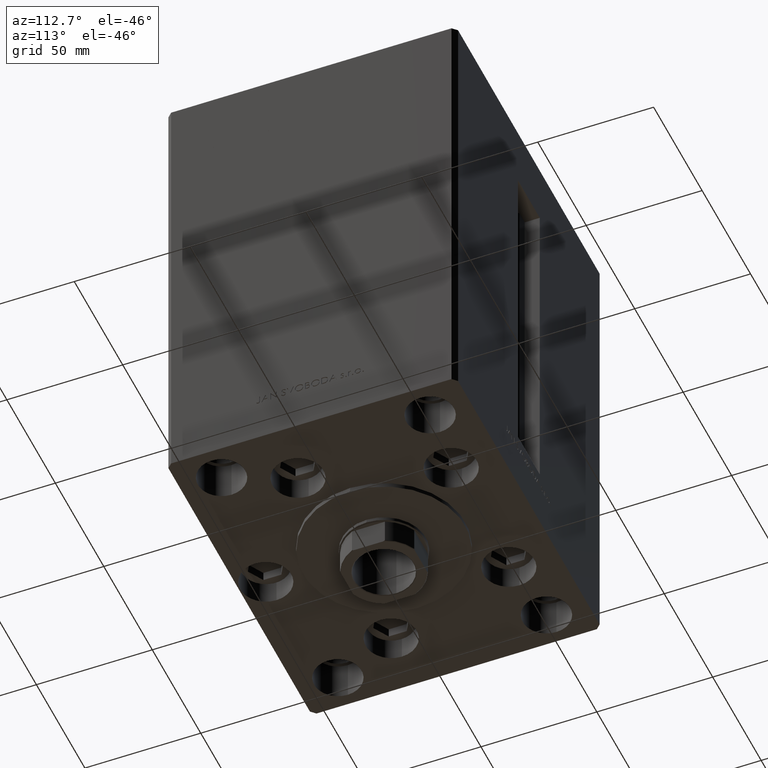
[diagram: clean part render]
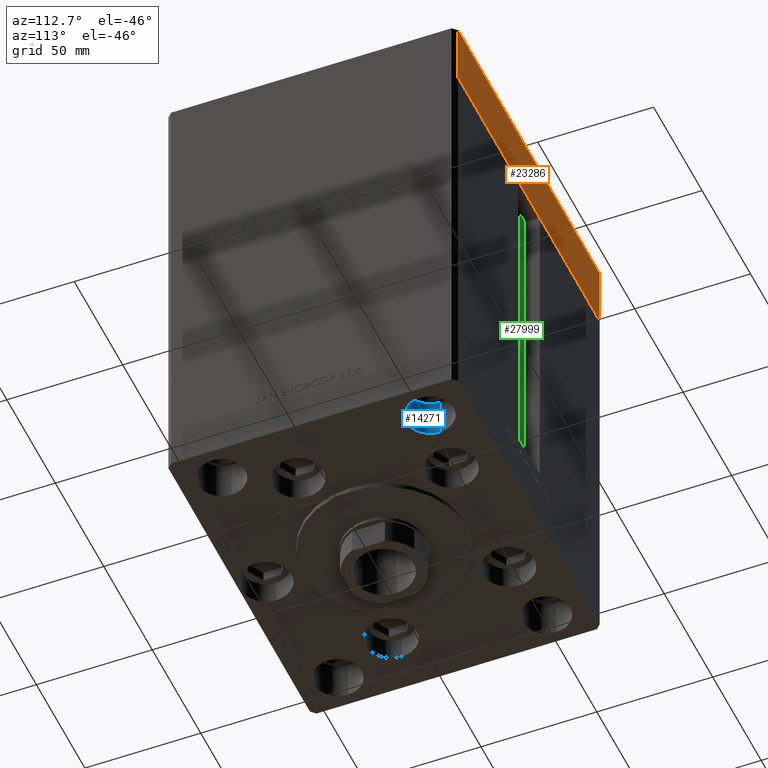
[diagram: same view with three faces highlighted in distinct colors, each labeled with its STEP entity id]
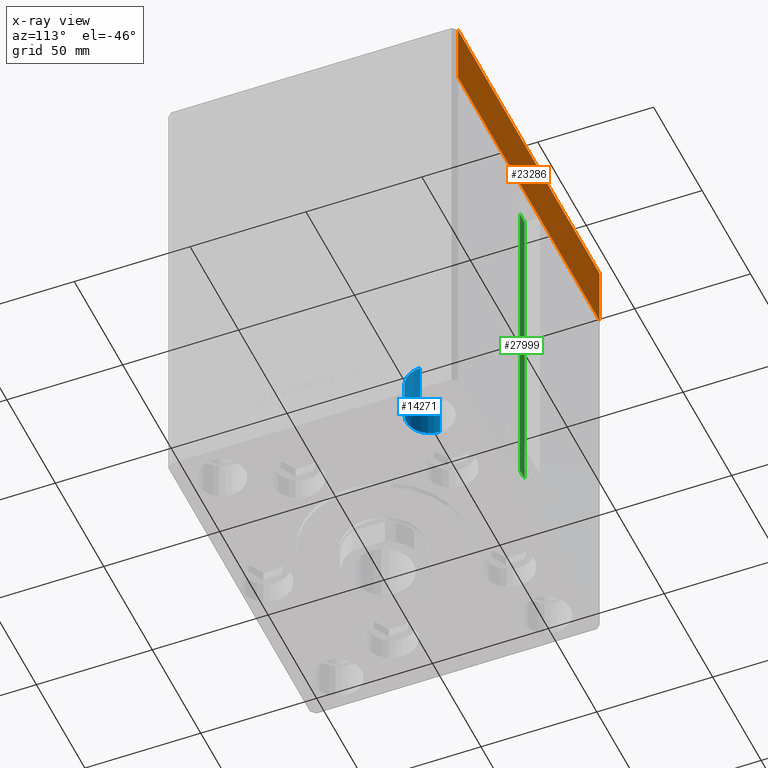
[diagram: x-ray of the same camera — body ghosted, the three highlighted faces saturated]
A machine part, auxiliary view with three faces highlighted in distinct colors.
The next image is the same camera in x-ray (body ghosted, the three faces saturated) — at least one of them is partly hidden behind the body in this view.
Their STEP definitions:

[orange] entity #23286 — the highlighted planar face has unit normal (-0, 1, 0).
#263 = DIRECTION ( 'NONE',  ( -1.000000000000000000, -1.901066822988282936E-16, 0.000000000000000000 ) ) ;
#1773 = VECTOR ( 'NONE', #21208, 1000.000000000000000 ) ;
#2021 = CARTESIAN_POINT ( 'NONE',  ( 72.99999999999992895, 62.50000000000001421, -27.00000000000000000 ) ) ;
#2050 = CARTESIAN_POINT ( 'NONE',  ( 72.99999999999992895, 62.50000000000001421, -27.00000000000000000 ) ) ;
#2683 = ORIENTED_EDGE ( 'NONE', *, *, #22191, .T. ) ;
#8813 = VECTOR ( 'NONE', #23526, 1000.000000000000000 ) ;
#8846 = AXIS2_PLACEMENT_3D ( 'NONE', #16347, #31454, #263 ) ;
#9917 = ORIENTED_EDGE ( 'NONE', *, *, #43497, .T. ) ;
#10445 = ORIENTED_EDGE ( 'NONE', *, *, #20473, .F. ) ;
#15859 = PLANE ( 'NONE',  #8846 ) ;
#16347 = CARTESIAN_POINT ( 'NONE',  ( 72.99999999999992895, 62.50000000000001421, -27.00000000000000000 ) ) ;
#16579 = LINE ( 'NONE', #43038, #8813 ) ;
#18905 = VERTEX_POINT ( 'NONE', #26313 ) ;
#20473 = EDGE_CURVE ( 'NONE', #29033, #18905, #28882, .T. ) ;
#20505 = DIRECTION ( 'NONE',  ( -1.000000000000000000, -1.901066822988282689E-16, 0.000000000000000000 ) ) ;
#21079 = EDGE_CURVE ( 'NONE', #27412, #29033, #35921, .T. ) ;
#21208 = DIRECTION ( 'NONE',  ( -1.000000000000000000, -1.901066822988282689E-16, 0.000000000000000000 ) ) ;
#21872 = VECTOR ( 'NONE', #20505, 1000.000000000000000 ) ;
#22031 = EDGE_LOOP ( 'NONE', ( #10445, #48441, #9917, #2683 ) ) ;
#22191 = EDGE_CURVE ( 'NONE', #34513, #18905, #16579, .T. ) ;
#23286 = ADVANCED_FACE ( 'NONE', ( #34185 ), #15859, .T. ) ;
#23523 = CARTESIAN_POINT ( 'NONE',  ( 72.99999999999992895, 62.50000000000001421, 0.000000000000000000 ) ) ;
#23526 = DIRECTION ( 'NONE',  ( 0.000000000000000000, 0.000000000000000000, 1.000000000000000000 ) ) ;
#26313 = CARTESIAN_POINT ( 'NONE',  ( -73.00000000000001421, 62.49999999999998579, 0.000000000000000000 ) ) ;
#27077 = VECTOR ( 'NONE', #47783, 1000.000000000000000 ) ;
#27238 = CARTESIAN_POINT ( 'NONE',  ( -73.00000000000001421, 62.49999999999998579, -27.00000000000000000 ) ) ;
#27412 = VERTEX_POINT ( 'NONE', #2050 ) ;
#28882 = LINE ( 'NONE', #29600, #1773 ) ;
#29033 = VERTEX_POINT ( 'NONE', #23523 ) ;
#29600 = CARTESIAN_POINT ( 'NONE',  ( 72.99999999999992895, 62.50000000000001421, 0.000000000000000000 ) ) ;
#31454 = DIRECTION ( 'NONE',  ( -1.901066822988282936E-16, 1.000000000000000000, 0.000000000000000000 ) ) ;
#34185 = FACE_OUTER_BOUND ( 'NONE', #22031, .T. ) ;
#34513 = VERTEX_POINT ( 'NONE', #27238 ) ;
#35106 = LINE ( 'NONE', #46938, #21872 ) ;
#35921 = LINE ( 'NONE', #2021, #27077 ) ;
#43038 = CARTESIAN_POINT ( 'NONE',  ( -73.00000000000001421, 62.49999999999998579, -27.00000000000000000 ) ) ;
#43497 = EDGE_CURVE ( 'NONE', #27412, #34513, #35106, .T. ) ;
#46938 = CARTESIAN_POINT ( 'NONE',  ( 72.99999999999992895, 62.50000000000001421, -27.00000000000000000 ) ) ;
#47783 = DIRECTION ( 'NONE',  ( 0.000000000000000000, 0.000000000000000000, 1.000000000000000000 ) ) ;
#48441 = ORIENTED_EDGE ( 'NONE', *, *, #21079, .F. ) ;

[blue] entity #14271 — the highlighted cylindrical surface (edge-blend (fillet) strip) has radius 10.25 mm, axis along (0, 0, -1).
#4037 = AXIS2_PLACEMENT_3D ( 'NONE', #12458, #4802, #38688 ) ;
#4310 = VECTOR ( 'NONE', #23770, 1000.000000000000000 ) ;
#4802 = DIRECTION ( 'NONE',  ( 0.000000000000000000, 0.000000000000000000, 1.000000000000000000 ) ) ;
#8073 = LINE ( 'NONE', #11535, #46346 ) ;
#8159 = FACE_OUTER_BOUND ( 'NONE', #13619, .T. ) ;
#9039 = CARTESIAN_POINT ( 'NONE',  ( -70.25000000000000000, 45.00000000000000711, 0.000000000000000000 ) ) ;
#9316 = CIRCLE ( 'NONE', #37737, 10.25000000000000178 ) ;
#11535 = CARTESIAN_POINT ( 'NONE',  ( -70.25000000000000000, 45.00000000000000711, -17.00000000000000000 ) ) ;
#11967 = CARTESIAN_POINT ( 'NONE',  ( -70.25000000000000000, 45.00000000000000711, -17.00000000000000000 ) ) ;
#12458 = CARTESIAN_POINT ( 'NONE',  ( -60.00000000000000000, 45.00000000000000711, -17.00000000000000000 ) ) ;
#13306 = CYLINDRICAL_SURFACE ( 'NONE', #15836, 10.25000000000000178 ) ;
#13619 = EDGE_LOOP ( 'NONE', ( #14968, #19728, #43486, #15361 ) ) ;
#13968 = CARTESIAN_POINT ( 'NONE',  ( -49.74999999999999289, 45.00000000000000711, -17.00000000000000000 ) ) ;
#14271 = ADVANCED_FACE ( 'NONE', ( #8159 ), #13306, .F. ) ;
#14968 = ORIENTED_EDGE ( 'NONE', *, *, #17165, .F. ) ;
#15305 = VERTEX_POINT ( 'NONE', #13968 ) ;
#15361 = ORIENTED_EDGE ( 'NONE', *, *, #29066, .F. ) ;
#15593 = LINE ( 'NONE', #16332, #4310 ) ;
#15836 = AXIS2_PLACEMENT_3D ( 'NONE', #30445, #45014, #45257 ) ;
#16332 = CARTESIAN_POINT ( 'NONE',  ( -49.74999999999999289, 45.00000000000000711, -17.00000000000000000 ) ) ;
#17165 = EDGE_CURVE ( 'NONE', #45179, #15305, #34068, .T. ) ;
#19728 = ORIENTED_EDGE ( 'NONE', *, *, #44712, .T. ) ;
#23053 = VERTEX_POINT ( 'NONE', #9039 ) ;
#23770 = DIRECTION ( 'NONE',  ( -0.000000000000000000, -0.000000000000000000, 1.000000000000000000 ) ) ;
#24830 = CARTESIAN_POINT ( 'NONE',  ( -60.00000000000000000, 45.00000000000000711, 0.000000000000000000 ) ) ;
#29066 = EDGE_CURVE ( 'NONE', #15305, #47462, #15593, .T. ) ;
#30445 = CARTESIAN_POINT ( 'NONE',  ( -60.00000000000000000, 45.00000000000000711, -17.00000000000000000 ) ) ;
#34068 = CIRCLE ( 'NONE', #4037, 10.25000000000000178 ) ;
#35015 = CARTESIAN_POINT ( 'NONE',  ( -49.74999999999999289, 45.00000000000000711, 0.000000000000000000 ) ) ;
#36215 = DIRECTION ( 'NONE',  ( 1.000000000000000000, 0.000000000000000000, 0.000000000000000000 ) ) ;
#37737 = AXIS2_PLACEMENT_3D ( 'NONE', #24830, #39917, #36215 ) ;
#38688 = DIRECTION ( 'NONE',  ( 1.000000000000000000, 0.000000000000000000, 0.000000000000000000 ) ) ;
#39917 = DIRECTION ( 'NONE',  ( 0.000000000000000000, 0.000000000000000000, 1.000000000000000000 ) ) ;
#41966 = DIRECTION ( 'NONE',  ( -0.000000000000000000, -0.000000000000000000, 1.000000000000000000 ) ) ;
#43486 = ORIENTED_EDGE ( 'NONE', *, *, #46724, .T. ) ;
#44712 = EDGE_CURVE ( 'NONE', #45179, #23053, #8073, .T. ) ;
#45014 = DIRECTION ( 'NONE',  ( -0.000000000000000000, -0.000000000000000000, 1.000000000000000000 ) ) ;
#45179 = VERTEX_POINT ( 'NONE', #11967 ) ;
#45257 = DIRECTION ( 'NONE',  ( 1.000000000000000000, 0.000000000000000000, 0.000000000000000000 ) ) ;
#46346 = VECTOR ( 'NONE', #41966, 1000.000000000000000 ) ;
#46724 = EDGE_CURVE ( 'NONE', #23053, #47462, #9316, .T. ) ;
#47462 = VERTEX_POINT ( 'NONE', #35015 ) ;

[green] entity #27999 — the highlighted planar face has unit normal (0, -1, 0).
#920 = VERTEX_POINT ( 'NONE', #7629 ) ;
#1048 = VERTEX_POINT ( 'NONE', #17011 ) ;
#3305 = LINE ( 'NONE', #17925, #3678 ) ;
#3678 = VECTOR ( 'NONE', #37675, 1000.000000000000000 ) ;
#5346 = DIRECTION ( 'NONE',  ( 0.000000000000000000, -1.000000000000000000, -0.000000000000000000 ) ) ;
#7629 = CARTESIAN_POINT ( 'NONE',  ( -11.25000000000000178, 55.99999999999999289, 147.0000000000000000 ) ) ;
#8821 = DIRECTION ( 'NONE',  ( 1.000000000000000000, -0.000000000000000000, -0.000000000000000000 ) ) ;
#9684 = CARTESIAN_POINT ( 'NONE',  ( -6.183333333334001480, 55.99999999999999289, 0.000000000000000000 ) ) ;
#10691 = ORIENTED_EDGE ( 'NONE', *, *, #33473, .F. ) ;
#13009 = DIRECTION ( 'NONE',  ( 0.000000000000000000, 0.000000000000000000, -1.000000000000000000 ) ) ;
#13153 = LINE ( 'NONE', #9684, #33702 ) ;
#16117 = EDGE_LOOP ( 'NONE', ( #10691, #29350, #43084, #33231 ) ) ;
#16239 = LINE ( 'NONE', #24405, #16373 ) ;
#16373 = VECTOR ( 'NONE', #8821, 1000.000000000000000 ) ;
#16381 = DIRECTION ( 'NONE',  ( -0.000000000000000000, -0.000000000000000000, 1.000000000000000000 ) ) ;
#17011 = CARTESIAN_POINT ( 'NONE',  ( -11.25000000000000178, 55.99999999999999289, 0.000000000000000000 ) ) ;
#17925 = CARTESIAN_POINT ( 'NONE',  ( -11.25000000000000178, 55.99999999999999289, 0.000000000000000000 ) ) ;
#21323 = VERTEX_POINT ( 'NONE', #40554 ) ;
#21369 = EDGE_CURVE ( 'NONE', #24706, #920, #25476, .T. ) ;
#24400 = CARTESIAN_POINT ( 'NONE',  ( -6.183333333334001480, 55.99999999999999289, 0.000000000000000000 ) ) ;
#24405 = CARTESIAN_POINT ( 'NONE',  ( -6.183333333334001480, 55.99999999999999289, 0.000000000000000000 ) ) ;
#24706 = VERTEX_POINT ( 'NONE', #39000 ) ;
#24973 = DIRECTION ( 'NONE',  ( -1.000000000000000000, 0.000000000000000000, 0.000000000000000000 ) ) ;
#25476 = LINE ( 'NONE', #43757, #34892 ) ;
#27999 = ADVANCED_FACE ( 'NONE', ( #32311 ), #31829, .F. ) ;
#29350 = ORIENTED_EDGE ( 'NONE', *, *, #36344, .F. ) ;
#30355 = AXIS2_PLACEMENT_3D ( 'NONE', #24400, #5346, #13009 ) ;
#31829 = PLANE ( 'NONE',  #30355 ) ;
#32311 = FACE_OUTER_BOUND ( 'NONE', #16117, .T. ) ;
#33231 = ORIENTED_EDGE ( 'NONE', *, *, #21369, .F. ) ;
#33473 = EDGE_CURVE ( 'NONE', #21323, #24706, #13153, .T. ) ;
#33702 = VECTOR ( 'NONE', #16381, 1000.000000000000000 ) ;
#34197 = EDGE_CURVE ( 'NONE', #1048, #920, #3305, .T. ) ;
#34892 = VECTOR ( 'NONE', #24973, 1000.000000000000000 ) ;
#36344 = EDGE_CURVE ( 'NONE', #1048, #21323, #16239, .T. ) ;
#37675 = DIRECTION ( 'NONE',  ( -0.000000000000000000, -0.000000000000000000, 1.000000000000000000 ) ) ;
#39000 = CARTESIAN_POINT ( 'NONE',  ( -6.183333333334001480, 55.99999999999999289, 147.0000000000000000 ) ) ;
#40554 = CARTESIAN_POINT ( 'NONE',  ( -6.183333333334001480, 55.99999999999999289, 0.000000000000000000 ) ) ;
#43084 = ORIENTED_EDGE ( 'NONE', *, *, #34197, .T. ) ;
#43757 = CARTESIAN_POINT ( 'NONE',  ( 0.000000000000000000, 55.99999999999999289, 147.0000000000000000 ) ) ;